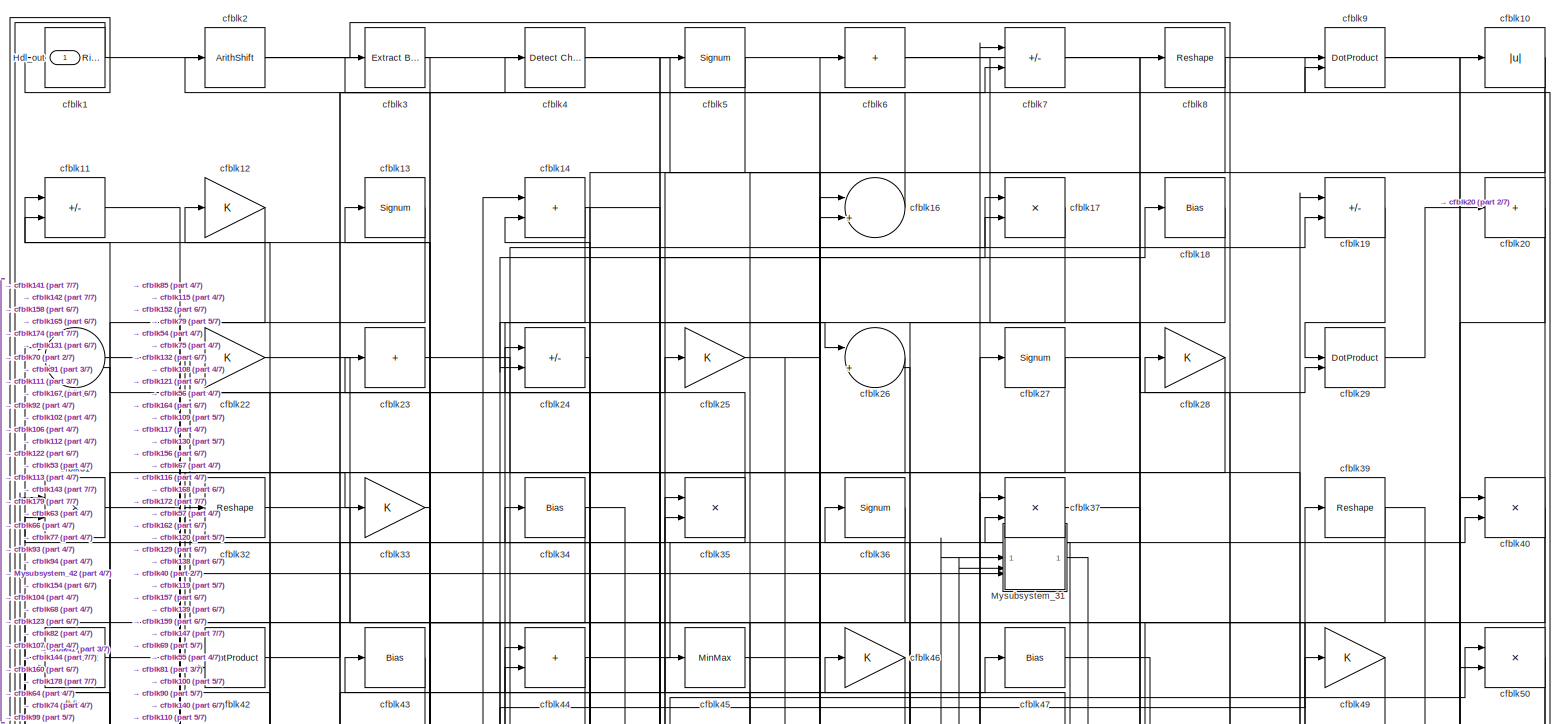
[diagram: root canvas - part 1/7, full width, top band]
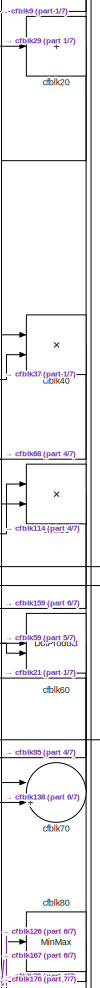
[diagram: root canvas - part 2/7, top right region]
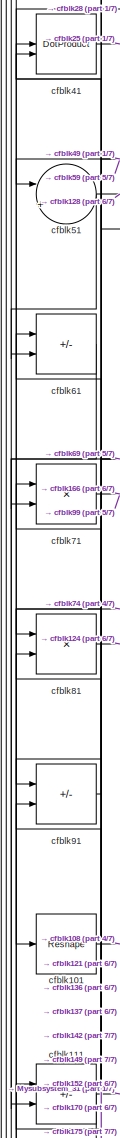
[diagram: root canvas - part 3/7, middle left region]
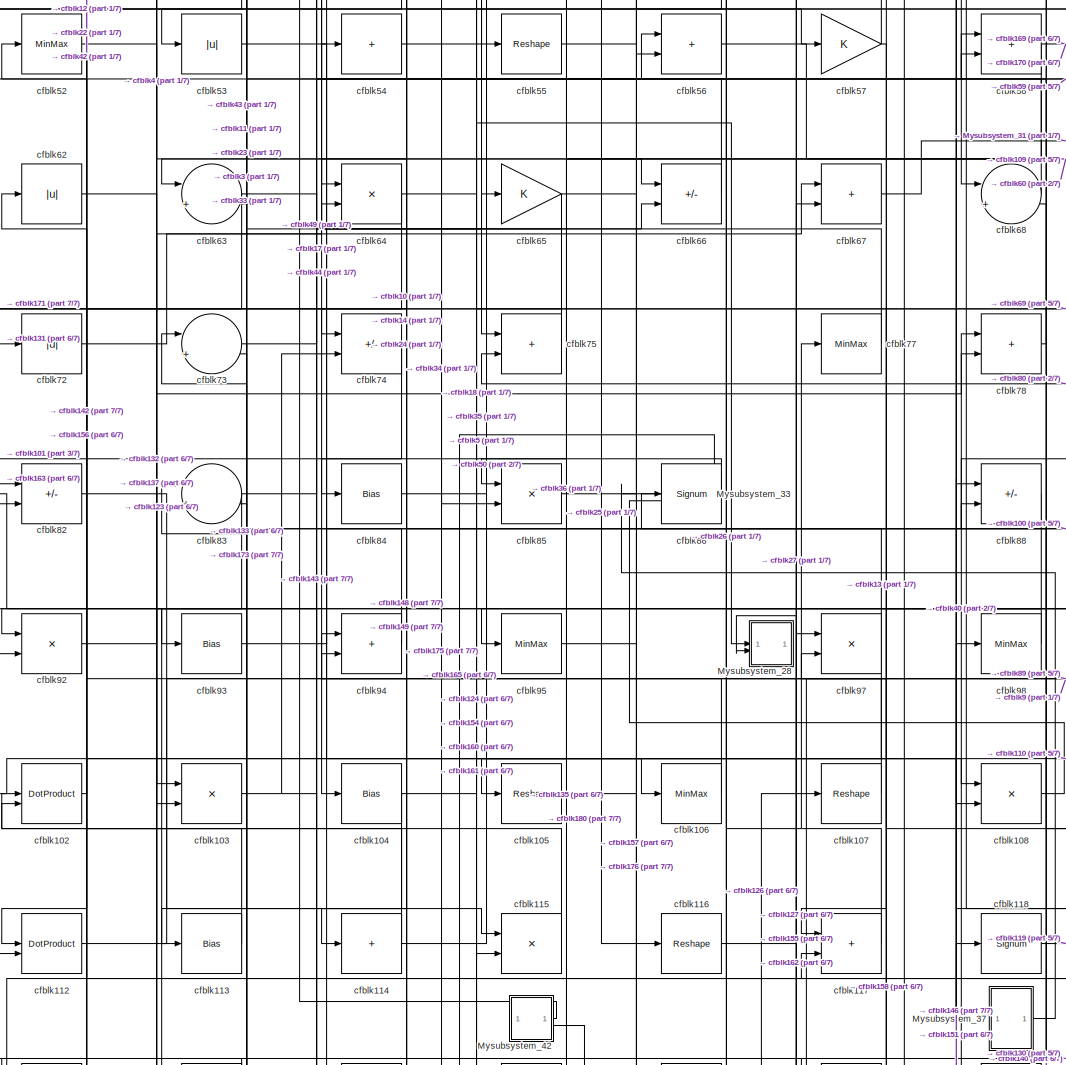
[diagram: root canvas - part 4/7, central region]
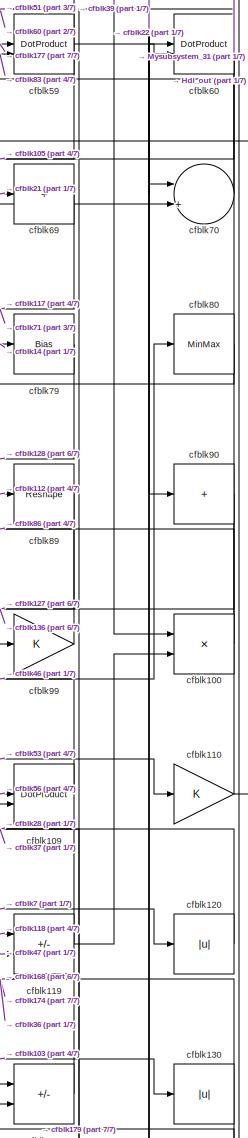
[diagram: root canvas - part 5/7, middle right region]
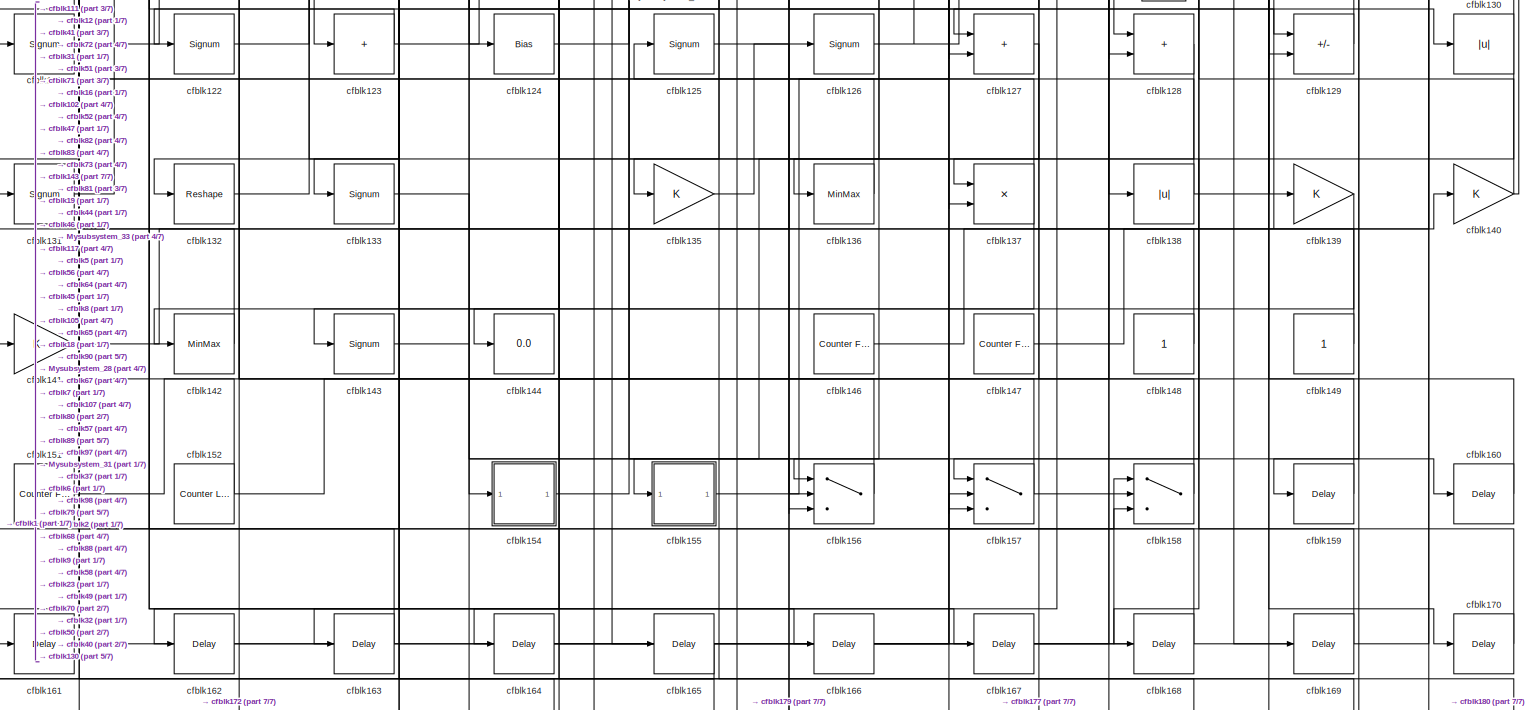
[diagram: root canvas - part 6/7, full width, bottom band]
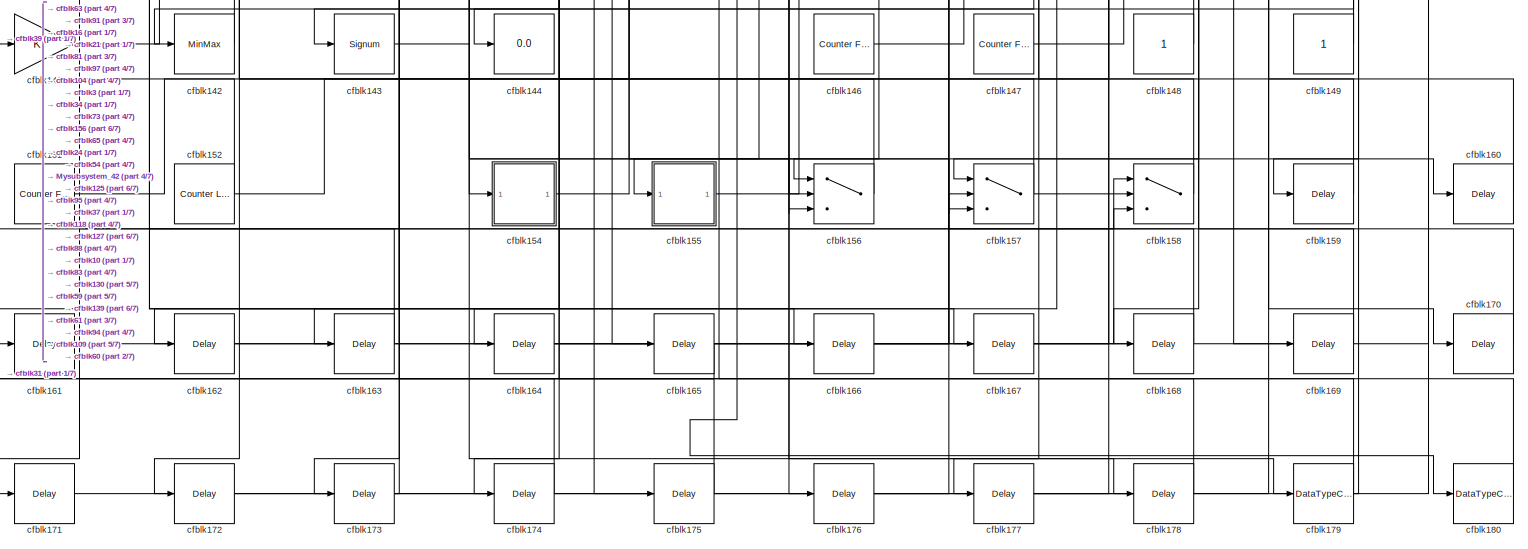
[diagram: root canvas - part 7/7, full width, bottom band]
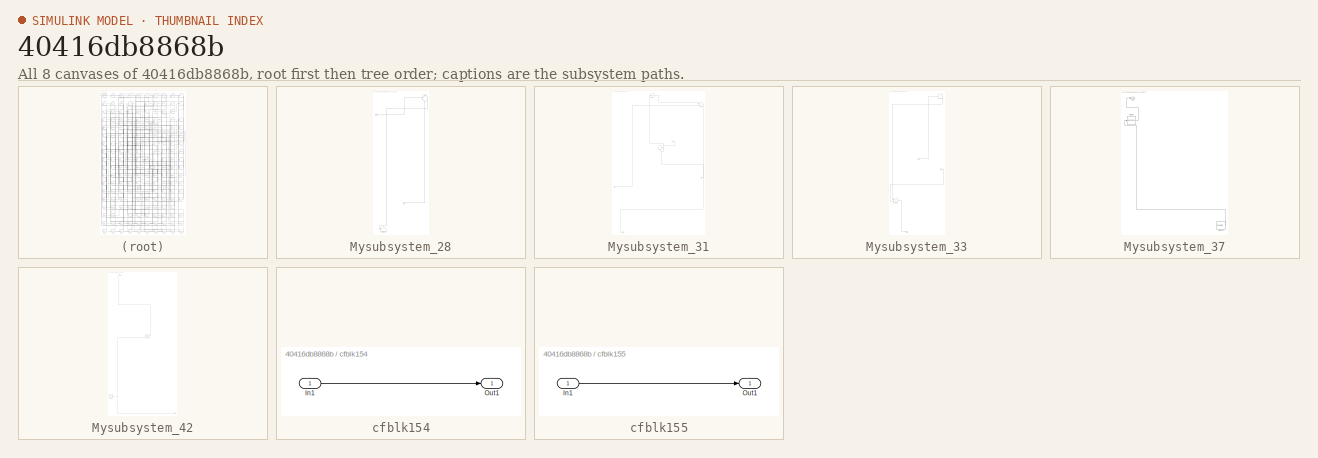
[diagram: thumbnail index - all 8 canvases of the model, root first then tree order]
MODEL slx_40416db8868b
KIND model
CONFIG AbsTol = auto
CONFIG EnableMultiTasking = off
CONFIG FixedStep = auto
CONFIG MaxStep = auto
CONFIG MinStep = auto
CONFIG RelTol = 1e-3
CONFIG SampleTimeConstraint = Unconstrained
CONFIG SolverName = VariableStepAuto
CONFIG StartTime = 0.0
CONFIG StopTime = 10.0
BLOCK [Outport] Hdl_out
  OutDataTypeStr = uint8
BLOCK [SubSystem] Mysubsystem_28
  RTWFcnName = Mysubsystem_28
  RTWFcnNameOpts = User specified
  RTWFileNameOpts = Use function name
  RTWSystemCode = Reusable function
  TreatAsAtomicUnit = on
BLOCK [Inport] Mysubsystem_28/In1
BLOCK [Inport] Mysubsystem_28/In2
  Port = 2
BLOCK [Terminator] Mysubsystem_28/cfblk145
BLOCK [Sum] Mysubsystem_28/cfblk48
  Inputs = |++
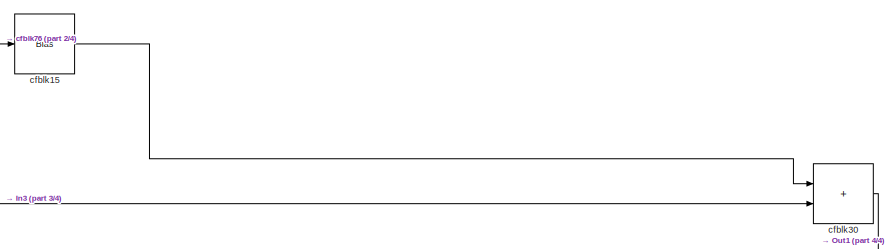
[diagram: Mysubsystem_31 - part 1/4, top right region]
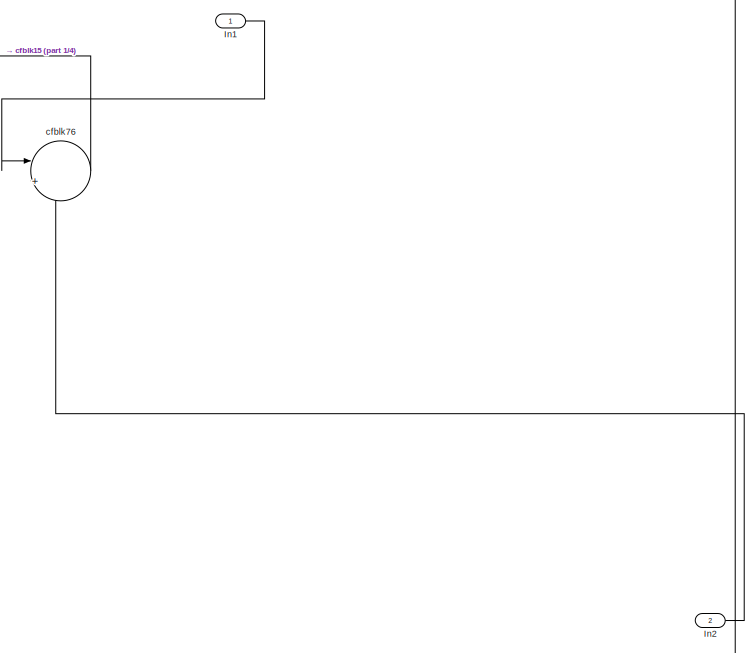
[diagram: Mysubsystem_31 - part 2/4, middle right region]
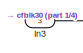
[diagram: Mysubsystem_31 - part 3/4, middle left region]
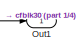
[diagram: Mysubsystem_31 - part 4/4, bottom left region]
BLOCK [SubSystem] Mysubsystem_31
  RTWFcnName = Mysubsystem_31
  RTWFcnNameOpts = User specified
  RTWFileNameOpts = Use function name
  RTWSystemCode = Reusable function
  TreatAsAtomicUnit = on
BLOCK [Inport] Mysubsystem_31/In1
BLOCK [Inport] Mysubsystem_31/In2
  Port = 2
BLOCK [Inport] Mysubsystem_31/In3
  Port = 3
BLOCK [Outport] Mysubsystem_31/Out1
BLOCK [Bias] Mysubsystem_31/cfblk15
  Bias = 0.0
  SaturateOnIntegerOverflow = off
BLOCK [Sum] Mysubsystem_31/cfblk30
  IconShape = rectangular
BLOCK [Sum] Mysubsystem_31/cfblk76
  Inputs = |++
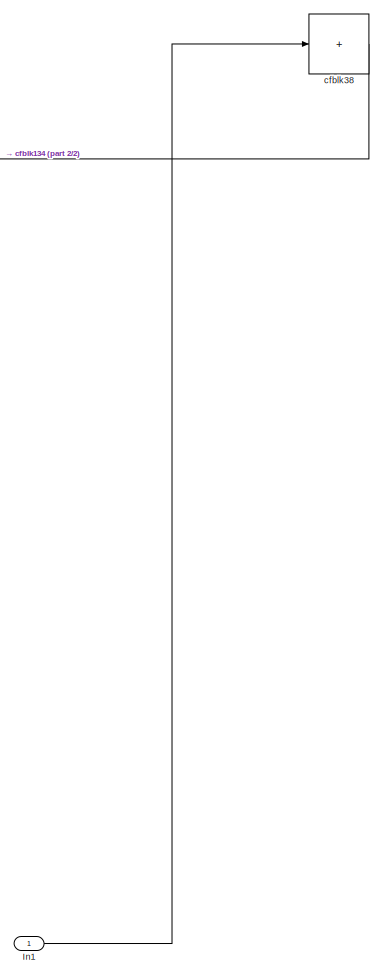
[diagram: Mysubsystem_33 - part 1/2, top right region]
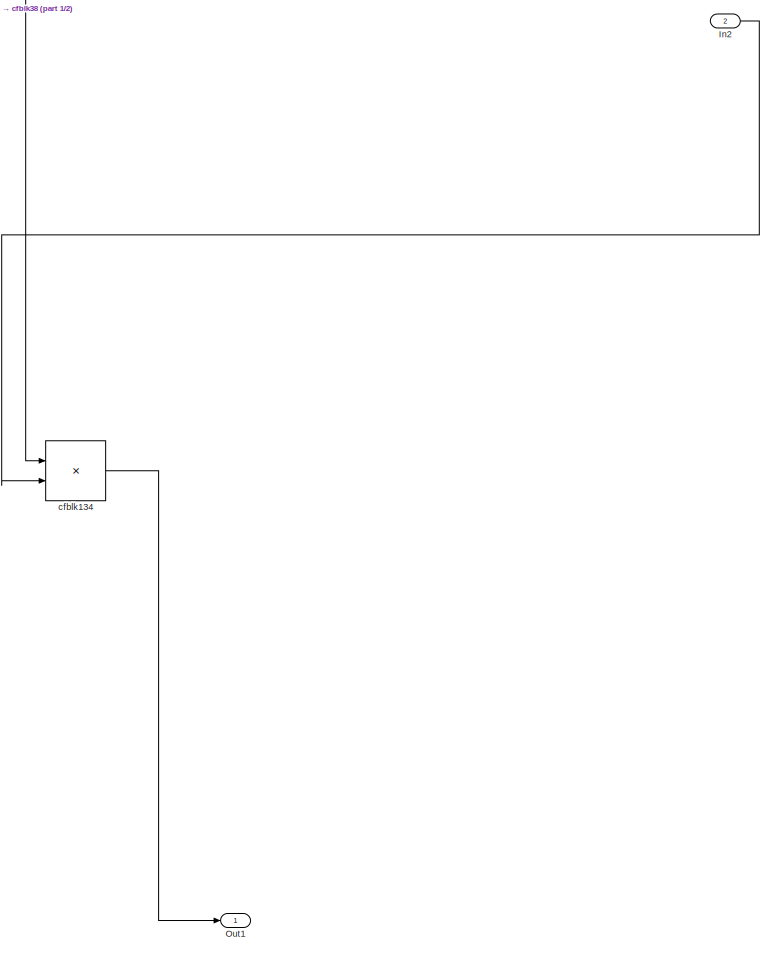
[diagram: Mysubsystem_33 - part 2/2, full width, bottom band]
BLOCK [SubSystem] Mysubsystem_33
  RTWFcnName = Mysubsystem_33
  RTWFcnNameOpts = User specified
  RTWFileNameOpts = Use function name
  RTWSystemCode = Reusable function
  TreatAsAtomicUnit = on
BLOCK [Inport] Mysubsystem_33/In1
BLOCK [Inport] Mysubsystem_33/In2
  Port = 2
BLOCK [Outport] Mysubsystem_33/Out1
BLOCK [Product] Mysubsystem_33/cfblk134
  Inputs = */
  RndMeth = Zero
  SaturateOnIntegerOverflow = on
BLOCK [Sum] Mysubsystem_33/cfblk38
  IconShape = rectangular
  Inputs = +
BLOCK [SubSystem] Mysubsystem_37
  RTWFcnName = Mysubsystem_37
  RTWFcnNameOpts = User specified
  RTWFileNameOpts = Use function name
  RTWSystemCode = Reusable function
  TreatAsAtomicUnit = on
BLOCK [Outport] Mysubsystem_37/Out1
BLOCK [Reference] Mysubsystem_37/cfblk150  REF=hdlsllib/Sources/Counter
Limited
  SourceBlock = hdlsllib/Sources/Counter\nLimited
  SourceType = Counter Limited
BLOCK [Reshape] Mysubsystem_37/cfblk96
BLOCK [SubSystem] Mysubsystem_42
  RTWFcnName = Mysubsystem_42
  RTWFcnNameOpts = User specified
  RTWFileNameOpts = Use function name
  RTWSystemCode = Reusable function
  TreatAsAtomicUnit = on
BLOCK [Outport] Mysubsystem_42/Out1
BLOCK [Reference] Mysubsystem_42/cfblk153  REF=hdlsllib/Sources/Counter
Limited
  SourceBlock = hdlsllib/Sources/Counter\nLimited
  SourceType = Counter Limited
BLOCK [MinMax] Mysubsystem_42/cfblk87
BLOCK [Outport] Mysubsystem_42/y
  Port = 2
BLOCK [Reference] cfblk1  REF=hdlsllib/Logic and Bit
Operations/Detect Rise
Nonnegative
  SourceBlock = hdlsllib/Logic and Bit\nOperations/Detect Rise\nNonnegative
  SourceType = Detect Rise Nonnegative
BLOCK [Abs] cfblk10
  OutDataTypeStr = uint8
  SaturateOnIntegerOverflow = off
BLOCK [Product] cfblk100
  Inputs = */
  OutDataTypeStr = uint8
  RndMeth = Zero
  SaturateOnIntegerOverflow = on
BLOCK [Reshape] cfblk101
BLOCK [DotProduct] cfblk102
  OutDataTypeStr = uint8
BLOCK [Product] cfblk103
  Inputs = */
  OutDataTypeStr = uint8
  RndMeth = Zero
  SaturateOnIntegerOverflow = on
BLOCK [Bias] cfblk104
  Bias = 0.0
  SaturateOnIntegerOverflow = off
BLOCK [Reshape] cfblk105
BLOCK [MinMax] cfblk106
  OutDataTypeStr = uint8
BLOCK [Reshape] cfblk107
BLOCK [Product] cfblk108
  Inputs = */
  OutDataTypeStr = uint8
  RndMeth = Zero
  SaturateOnIntegerOverflow = on
BLOCK [DotProduct] cfblk109
  OutDataTypeStr = uint8
BLOCK [Sum] cfblk11
  IconShape = rectangular
  Inputs = +-
  OutDataTypeStr = uint8
BLOCK [Gain] cfblk110
  OutDataTypeStr = uint8
BLOCK [Sum] cfblk111
  IconShape = rectangular
  Inputs = +-
  OutDataTypeStr = uint8
BLOCK [DotProduct] cfblk112
  OutDataTypeStr = uint8
BLOCK [Bias] cfblk113
  Bias = 0.0
  SaturateOnIntegerOverflow = off
BLOCK [Sum] cfblk114
  IconShape = rectangular
  Inputs = +
  OutDataTypeStr = uint8
BLOCK [Product] cfblk115
  Inputs = */
  OutDataTypeStr = uint8
  RndMeth = Zero
  SaturateOnIntegerOverflow = on
BLOCK [Reshape] cfblk116
BLOCK [Sum] cfblk117
  IconShape = rectangular
  OutDataTypeStr = uint8
BLOCK [Signum] cfblk118
BLOCK [Sum] cfblk119
  IconShape = rectangular
  Inputs = +-
  OutDataTypeStr = uint8
BLOCK [Gain] cfblk12
  OutDataTypeStr = uint8
BLOCK [Abs] cfblk120
  OutDataTypeStr = uint8
  SaturateOnIntegerOverflow = off
BLOCK [Signum] cfblk121
BLOCK [Signum] cfblk122
BLOCK [Sum] cfblk123
  IconShape = rectangular
  Inputs = +
  OutDataTypeStr = uint8
BLOCK [Bias] cfblk124
  Bias = 0.0
  SaturateOnIntegerOverflow = off
BLOCK [Signum] cfblk125
BLOCK [Signum] cfblk126
BLOCK [Sum] cfblk127
  IconShape = rectangular
  OutDataTypeStr = uint8
BLOCK [Sum] cfblk128
  IconShape = rectangular
  OutDataTypeStr = uint8
BLOCK [Sum] cfblk129
  IconShape = rectangular
  Inputs = +-
  OutDataTypeStr = uint8
BLOCK [Signum] cfblk13
BLOCK [Abs] cfblk130
  OutDataTypeStr = uint8
  SaturateOnIntegerOverflow = off
BLOCK [Signum] cfblk131
BLOCK [Reshape] cfblk132
BLOCK [Signum] cfblk133
BLOCK [Gain] cfblk135
  OutDataTypeStr = uint8
BLOCK [MinMax] cfblk136
  OutDataTypeStr = uint8
BLOCK [Product] cfblk137
  Inputs = */
  OutDataTypeStr = uint8
  RndMeth = Zero
  SaturateOnIntegerOverflow = on
BLOCK [Abs] cfblk138
  OutDataTypeStr = uint8
  SaturateOnIntegerOverflow = off
BLOCK [Gain] cfblk139
  OutDataTypeStr = uint8
BLOCK [Sum] cfblk14
  IconShape = rectangular
  OutDataTypeStr = uint8
BLOCK [Gain] cfblk140
  OutDataTypeStr = uint8
BLOCK [Gain] cfblk141
  OutDataTypeStr = uint8
BLOCK [MinMax] cfblk142
  OutDataTypeStr = uint8
BLOCK [Signum] cfblk143
BLOCK [Display] cfblk144
  Decimation = 1
BLOCK [Reference] cfblk146  REF=hdlsllib/Sources/Counter
Free-Running
  SourceBlock = hdlsllib/Sources/Counter\nFree-Running
  SourceType = Counter Free-Running
BLOCK [Reference] cfblk147  REF=hdlsllib/Sources/Counter
Free-Running
  SourceBlock = hdlsllib/Sources/Counter\nFree-Running
  SourceType = Counter Free-Running
BLOCK [Constant] cfblk148
  OutDataTypeStr = uint8
  SampleTime = -1
BLOCK [Constant] cfblk149
  OutDataTypeStr = uint8
  SampleTime = -1
BLOCK [Reference] cfblk151  REF=hdlsllib/Sources/Counter
Free-Running
  SourceBlock = hdlsllib/Sources/Counter\nFree-Running
  SourceType = Counter Free-Running
BLOCK [Reference] cfblk152  REF=hdlsllib/Sources/Counter
Limited
  SourceBlock = hdlsllib/Sources/Counter\nLimited
  SourceType = Counter Limited
BLOCK [SubSystem] cfblk154
  LibrarySourceBlock = hdlsllib/Ports &\nSubsystems/Subsystem
BLOCK [Inport] cfblk154/In1
BLOCK [Outport] cfblk154/Out1
BLOCK [SubSystem] cfblk155
  LibrarySourceBlock = hdlsllib/Ports &\nSubsystems/Subsystem
BLOCK [Inport] cfblk155/In1
BLOCK [Outport] cfblk155/Out1
BLOCK [Switch] cfblk156
  InputSameDT = off
  OutDataTypeStr = uint8
  SaturateOnIntegerOverflow = off
BLOCK [Switch] cfblk157
  InputSameDT = off
  OutDataTypeStr = uint8
  SaturateOnIntegerOverflow = off
BLOCK [Switch] cfblk158
  InputSameDT = off
  OutDataTypeStr = uint8
  SaturateOnIntegerOverflow = off
BLOCK [Delay] cfblk159
  InputPortMap = u0
  SampleTime = 1
BLOCK [Sum] cfblk16
  Inputs = |++
  OutDataTypeStr = uint8
BLOCK [Delay] cfblk160
  InputPortMap = u0
  SampleTime = 1
BLOCK [Delay] cfblk161
  InputPortMap = u0
  SampleTime = 1
BLOCK [Delay] cfblk162
  InputPortMap = u0
  SampleTime = 1
BLOCK [Delay] cfblk163
  InputPortMap = u0
  SampleTime = 1
BLOCK [Delay] cfblk164
  InputPortMap = u0
  SampleTime = 1
BLOCK [Delay] cfblk165
  InputPortMap = u0
  SampleTime = 1
BLOCK [Delay] cfblk166
  InputPortMap = u0
  SampleTime = 1
BLOCK [Delay] cfblk167
  InputPortMap = u0
  SampleTime = 1
BLOCK [Delay] cfblk168
  InputPortMap = u0
  SampleTime = 1
BLOCK [Delay] cfblk169
  InputPortMap = u0
  SampleTime = 1
BLOCK [Product] cfblk17
  Inputs = */
  OutDataTypeStr = uint8
  RndMeth = Zero
  SaturateOnIntegerOverflow = on
BLOCK [Delay] cfblk170
  InputPortMap = u0
  SampleTime = 1
BLOCK [Delay] cfblk171
  InputPortMap = u0
  SampleTime = 1
BLOCK [Delay] cfblk172
  InputPortMap = u0
  SampleTime = 1
BLOCK [Delay] cfblk173
  InputPortMap = u0
  SampleTime = 1
BLOCK [Delay] cfblk174
  InputPortMap = u0
  SampleTime = 1
BLOCK [Delay] cfblk175
  InputPortMap = u0
  SampleTime = 1
BLOCK [Delay] cfblk176
  InputPortMap = u0
  SampleTime = 1
BLOCK [Delay] cfblk177
  InputPortMap = u0
  SampleTime = 1
BLOCK [Delay] cfblk178
  InputPortMap = u0
  SampleTime = 1
BLOCK [DataTypeConversion] cfblk179
  OutDataTypeStr = uint8
  RndMeth = Floor
  SaturateOnIntegerOverflow = off
BLOCK [Bias] cfblk18
  Bias = 0.0
  SaturateOnIntegerOverflow = off
BLOCK [DataTypeConversion] cfblk180
  OutDataTypeStr = uint8
  RndMeth = Floor
  SaturateOnIntegerOverflow = off
BLOCK [Sum] cfblk19
  IconShape = rectangular
  Inputs = +-
  OutDataTypeStr = uint8
BLOCK [ArithShift] cfblk2
  BitShiftNumber = 8
  InputPortMap = u0
BLOCK [Sum] cfblk20
  IconShape = rectangular
  Inputs = +
  OutDataTypeStr = uint8
BLOCK [Sum] cfblk21
  Inputs = |++
  OutDataTypeStr = uint8
BLOCK [Gain] cfblk22
  OutDataTypeStr = uint8
BLOCK [Sum] cfblk23
  IconShape = rectangular
  Inputs = +
  OutDataTypeStr = uint8
BLOCK [Sum] cfblk24
  IconShape = rectangular
  Inputs = +-
  OutDataTypeStr = uint8
BLOCK [Gain] cfblk25
  OutDataTypeStr = uint8
BLOCK [Sum] cfblk26
  Inputs = |++
  OutDataTypeStr = uint8
BLOCK [Signum] cfblk27
BLOCK [Gain] cfblk28
  OutDataTypeStr = uint8
BLOCK [DotProduct] cfblk29
  OutDataTypeStr = uint8
BLOCK [Reference] cfblk3  REF=simulink/Logic and Bit
Operations/Extract Bits
  LibrarySourceBlock = hdlsllib/Logic and Bit\nOperations/Extract Bits
  SourceBlock = simulink/Logic and Bit\nOperations/Extract Bits
  SourceType = Extract Bits
BLOCK [Product] cfblk31
  Inputs = */
  OutDataTypeStr = uint8
  RndMeth = Zero
  SaturateOnIntegerOverflow = on
BLOCK [Reshape] cfblk32
BLOCK [Gain] cfblk33
  OutDataTypeStr = uint8
BLOCK [Bias] cfblk34
  Bias = 0.0
  SaturateOnIntegerOverflow = off
BLOCK [Product] cfblk35
  Inputs = */
  OutDataTypeStr = uint8
  RndMeth = Zero
  SaturateOnIntegerOverflow = on
BLOCK [Signum] cfblk36
BLOCK [Product] cfblk37
  Inputs = */
  OutDataTypeStr = uint8
  RndMeth = Zero
  SaturateOnIntegerOverflow = on
BLOCK [Reshape] cfblk39
BLOCK [Reference] cfblk4  REF=simulink/Logic and Bit
Operations/Detect
Change
  LibrarySourceBlock = hdlsllib/Logic and Bit\nOperations/Detect\nChange
  SourceBlock = simulink/Logic and Bit\nOperations/Detect\nChange
  SourceType = Detect Change
BLOCK [Product] cfblk40
  Inputs = */
  OutDataTypeStr = uint8
  RndMeth = Zero
  SaturateOnIntegerOverflow = on
BLOCK [DotProduct] cfblk41
  OutDataTypeStr = uint8
BLOCK [DotProduct] cfblk42
  OutDataTypeStr = uint8
BLOCK [Bias] cfblk43
  Bias = 0.0
  SaturateOnIntegerOverflow = off
BLOCK [Sum] cfblk44
  IconShape = rectangular
  OutDataTypeStr = uint8
BLOCK [MinMax] cfblk45
  OutDataTypeStr = uint8
BLOCK [Gain] cfblk46
  OutDataTypeStr = uint8
BLOCK [Bias] cfblk47
  Bias = 0.0
  SaturateOnIntegerOverflow = off
BLOCK [Gain] cfblk49
  OutDataTypeStr = uint8
BLOCK [Signum] cfblk5
BLOCK [Product] cfblk50
  Inputs = */
  OutDataTypeStr = uint8
  RndMeth = Zero
  SaturateOnIntegerOverflow = on
BLOCK [Sum] cfblk51
  Inputs = |++
  OutDataTypeStr = uint8
BLOCK [MinMax] cfblk52
  OutDataTypeStr = uint8
BLOCK [Abs] cfblk53
  OutDataTypeStr = uint8
  SaturateOnIntegerOverflow = off
BLOCK [Sum] cfblk54
  IconShape = rectangular
  Inputs = +
  OutDataTypeStr = uint8
BLOCK [Reshape] cfblk55
BLOCK [Sum] cfblk56
  IconShape = rectangular
  OutDataTypeStr = uint8
BLOCK [Gain] cfblk57
  OutDataTypeStr = uint8
BLOCK [Sum] cfblk58
  IconShape = rectangular
  OutDataTypeStr = uint8
BLOCK [DotProduct] cfblk59
  OutDataTypeStr = uint8
BLOCK [Sum] cfblk6
  IconShape = rectangular
  Inputs = +
  OutDataTypeStr = uint8
BLOCK [DotProduct] cfblk60
  OutDataTypeStr = uint8
BLOCK [Sum] cfblk61
  IconShape = rectangular
  Inputs = +-
  OutDataTypeStr = uint8
BLOCK [Abs] cfblk62
  OutDataTypeStr = uint8
  SaturateOnIntegerOverflow = off
BLOCK [Sum] cfblk63
  Inputs = |++
  OutDataTypeStr = uint8
BLOCK [Product] cfblk64
  Inputs = */
  OutDataTypeStr = uint8
  RndMeth = Zero
  SaturateOnIntegerOverflow = on
BLOCK [Gain] cfblk65
  OutDataTypeStr = uint8
BLOCK [Sum] cfblk66
  IconShape = rectangular
  Inputs = +-
  OutDataTypeStr = uint8
BLOCK [Sum] cfblk67
  IconShape = rectangular
  OutDataTypeStr = uint8
BLOCK [Sum] cfblk68
  Inputs = |++
  OutDataTypeStr = uint8
BLOCK [Sum] cfblk69
  IconShape = rectangular
  Inputs = +
  OutDataTypeStr = uint8
BLOCK [Sum] cfblk7
  IconShape = rectangular
  Inputs = +-
  OutDataTypeStr = uint8
BLOCK [Sum] cfblk70
  Inputs = |++
  OutDataTypeStr = uint8
BLOCK [Product] cfblk71
  Inputs = */
  OutDataTypeStr = uint8
  RndMeth = Zero
  SaturateOnIntegerOverflow = on
BLOCK [Abs] cfblk72
  OutDataTypeStr = uint8
  SaturateOnIntegerOverflow = off
BLOCK [Sum] cfblk73
  Inputs = |++
  OutDataTypeStr = uint8
BLOCK [Sum] cfblk74
  IconShape = rectangular
  Inputs = +-
  OutDataTypeStr = uint8
BLOCK [Sum] cfblk75
  IconShape = rectangular
  OutDataTypeStr = uint8
BLOCK [MinMax] cfblk77
  OutDataTypeStr = uint8
BLOCK [Sum] cfblk78
  IconShape = rectangular
  OutDataTypeStr = uint8
BLOCK [Bias] cfblk79
  Bias = 0.0
  SaturateOnIntegerOverflow = off
BLOCK [Reshape] cfblk8
BLOCK [MinMax] cfblk80
  OutDataTypeStr = uint8
BLOCK [Product] cfblk81
  Inputs = */
  OutDataTypeStr = uint8
  RndMeth = Zero
  SaturateOnIntegerOverflow = on
BLOCK [Sum] cfblk82
  IconShape = rectangular
  Inputs = +-
  OutDataTypeStr = uint8
BLOCK [Sum] cfblk83
  Inputs = |++
  OutDataTypeStr = uint8
BLOCK [Bias] cfblk84
  Bias = 0.0
  SaturateOnIntegerOverflow = off
BLOCK [Product] cfblk85
  Inputs = */
  OutDataTypeStr = uint8
  RndMeth = Zero
  SaturateOnIntegerOverflow = on
BLOCK [Signum] cfblk86
BLOCK [Sum] cfblk88
  IconShape = rectangular
  Inputs = +-
  OutDataTypeStr = uint8
BLOCK [Reshape] cfblk89
BLOCK [DotProduct] cfblk9
  OutDataTypeStr = uint8
BLOCK [Sum] cfblk90
  IconShape = rectangular
  Inputs = +
  OutDataTypeStr = uint8
BLOCK [Sum] cfblk91
  IconShape = rectangular
  Inputs = +-
  OutDataTypeStr = uint8
BLOCK [Product] cfblk92
  Inputs = */
  OutDataTypeStr = uint8
  RndMeth = Zero
  SaturateOnIntegerOverflow = on
BLOCK [Bias] cfblk93
  Bias = 0.0
  SaturateOnIntegerOverflow = off
BLOCK [Sum] cfblk94
  IconShape = rectangular
  OutDataTypeStr = uint8
BLOCK [MinMax] cfblk95
  OutDataTypeStr = uint8
BLOCK [Product] cfblk97
  Inputs = */
  OutDataTypeStr = uint8
  RndMeth = Zero
  SaturateOnIntegerOverflow = on
BLOCK [MinMax] cfblk98
  OutDataTypeStr = uint8
BLOCK [Gain] cfblk99
  OutDataTypeStr = uint8
LINE Mysubsystem_28/In1:1 -> Mysubsystem_28/cfblk48:1
LINE Mysubsystem_28/In2:1 -> Mysubsystem_28/cfblk48:2
LINE Mysubsystem_28/cfblk48:1 -> Mysubsystem_28/cfblk145:1
LINE Mysubsystem_31/In1:1 -> Mysubsystem_31/cfblk76:1
LINE Mysubsystem_31/In2:1 -> Mysubsystem_31/cfblk76:2
LINE Mysubsystem_31/In3:1 -> Mysubsystem_31/cfblk30:2
LINE Mysubsystem_31/cfblk15:1 -> Mysubsystem_31/cfblk30:1
LINE Mysubsystem_31/cfblk30:1 -> Mysubsystem_31/Out1:1
LINE Mysubsystem_31/cfblk76:1 -> Mysubsystem_31/cfblk15:1
LINE Mysubsystem_31:1 -> cfblk162:1
LINE Mysubsystem_33/In1:1 -> Mysubsystem_33/cfblk38:1
LINE Mysubsystem_33/In2:1 -> Mysubsystem_33/cfblk134:2
LINE Mysubsystem_33/cfblk134:1 -> Mysubsystem_33/Out1:1
LINE Mysubsystem_33/cfblk38:1 -> Mysubsystem_33/cfblk134:1
LINE Mysubsystem_33:1 -> cfblk165:1
LINE Mysubsystem_37/cfblk150:1 -> Mysubsystem_37/cfblk96:1
LINE Mysubsystem_37/cfblk96:1 -> Mysubsystem_37/Out1:1
LINE Mysubsystem_37:1 -> Mysubsystem_33:1
NET Mysubsystem_42/cfblk153:1 -> Mysubsystem_42/cfblk87:1, Mysubsystem_42/y:1
LINE Mysubsystem_42/cfblk87:1 -> Mysubsystem_42/Out1:1
LINE Mysubsystem_42:1 -> cfblk14:1
LINE Mysubsystem_42:2 -> cfblk180:1
LINE cfblk100:1 -> cfblk86:1
LINE cfblk101:1 -> cfblk108:1
LINE cfblk102:1 -> cfblk22:1
NET cfblk103:1 -> cfblk130:1, cfblk74:2
NET cfblk104:1 -> cfblk173:1, cfblk18:1
LINE cfblk105:1 -> cfblk127:2
LINE cfblk106:1 -> cfblk42:2
LINE cfblk107:1 -> cfblk24:1
LINE cfblk108:1 -> Mysubsystem_33:2
LINE cfblk109:1 -> cfblk46:1
LINE cfblk10:1 -> cfblk64:1
NET cfblk110:1 -> Hdl_out:1, Mysubsystem_31:2
NET cfblk111:1 -> Mysubsystem_31:3, cfblk121:1
NET cfblk112:1 -> cfblk78:2, cfblk89:1, cfblk9:2
LINE cfblk113:1 -> cfblk62:1
NET cfblk114:1 -> cfblk102:1, cfblk50:1
LINE cfblk115:1 -> cfblk12:1
LINE cfblk116:1 -> cfblk27:1
NET cfblk117:1 -> cfblk26:2, cfblk77:1
LINE cfblk118:1 -> cfblk119:1
NET cfblk119:1 -> cfblk100:2, cfblk28:1
LINE cfblk11:1 -> cfblk92:2
LINE cfblk120:1 -> cfblk37:2
LINE cfblk121:1 -> cfblk16:2
LINE cfblk122:1 -> cfblk47:1
NET cfblk123:1 -> cfblk122:1, cfblk19:2
LINE cfblk124:1 -> cfblk117:2
LINE cfblk125:1 -> cfblk179:1
NET cfblk126:1 -> Mysubsystem_28:2, cfblk107:1, cfblk80:1
LINE cfblk127:1 -> cfblk177:1
LINE cfblk128:1 -> cfblk155:1
LINE cfblk129:1 -> cfblk32:1
LINE cfblk12:1 -> cfblk131:1
NET cfblk130:1 -> cfblk168:1, cfblk174:1, cfblk36:1
LINE cfblk131:1 -> cfblk72:1
LINE cfblk132:1 -> cfblk64:2
NET cfblk133:1 -> cfblk156:2, cfblk83:2
LINE cfblk135:1 -> cfblk126:1
LINE cfblk136:1 -> cfblk71:1
NET cfblk137:1 -> cfblk163:1, cfblk51:2
NET cfblk138:1 -> cfblk45:1, cfblk70:2
LINE cfblk139:1 -> cfblk172:1
LINE cfblk13:1 -> cfblk112:2
NET cfblk140:1 -> cfblk88:2, cfblk9:1
LINE cfblk141:1 -> cfblk16:1
NET cfblk142:1 -> cfblk21:1, cfblk81:2
NET cfblk143:1 -> cfblk156:3, cfblk178:1, cfblk65:1
LINE cfblk146:1 -> cfblk118:1
NET cfblk147:1 -> cfblk10:1, cfblk39:1
NET cfblk148:1 -> cfblk83:1, cfblk94:1
NET cfblk149:1 -> cfblk61:1, cfblk94:2
NET cfblk14:1 -> cfblk24:2, cfblk74:1, cfblk79:1
LINE cfblk151:1 -> cfblk98:1
NET cfblk152:1 -> cfblk111:1, cfblk5:1
LINE cfblk154/In1:1 -> cfblk154/Out1:1
NET cfblk154:1 -> Mysubsystem_28:1, cfblk56:1
LINE cfblk155/In1:1 -> cfblk155/Out1:1
LINE cfblk155:1 -> cfblk67:2
LINE cfblk156:1 -> cfblk52:1
NET cfblk157:1 -> cfblk102:2, cfblk140:1
LINE cfblk158:1 -> cfblk97:2
LINE cfblk159:1 -> cfblk19:1
LINE cfblk160:1 -> cfblk44:2
LINE cfblk161:1 -> cfblk158:3
LINE cfblk162:1 -> cfblk97:1
LINE cfblk163:1 -> cfblk82:1
LINE cfblk164:1 -> cfblk158:2
LINE cfblk165:1 -> cfblk1:1
LINE cfblk166:1 -> cfblk157:2
LINE cfblk167:1 -> cfblk40:1
LINE cfblk168:1 -> cfblk7:1
LINE cfblk169:1 -> cfblk68:2
LINE cfblk16:1 -> cfblk2:1
LINE cfblk170:1 -> cfblk41:2
LINE cfblk171:1 -> cfblk88:1
LINE cfblk172:1 -> cfblk37:1
LINE cfblk173:1 -> cfblk73:2
LINE cfblk174:1 -> cfblk31:1
LINE cfblk175:1 -> cfblk91:2
LINE cfblk176:1 -> cfblk60:1
LINE cfblk177:1 -> cfblk59:1
LINE cfblk178:1 -> cfblk34:1
NET cfblk179:1 -> cfblk109:2, cfblk3:1
LINE cfblk17:1 -> cfblk104:1
LINE cfblk180:1 -> cfblk125:1
LINE cfblk18:1 -> cfblk156:1
LINE cfblk19:1 -> cfblk29:1
LINE cfblk1:1 -> cfblk158:1
LINE cfblk20:1 -> cfblk50:2
LINE cfblk21:1 -> cfblk69:1
LINE cfblk22:1 -> cfblk90:1
LINE cfblk23:1 -> cfblk139:1
LINE cfblk24:1 -> cfblk144:1
NET cfblk25:1 -> cfblk116:1, cfblk6:1
LINE cfblk26:1 -> cfblk115:2
NET cfblk27:1 -> cfblk29:2, cfblk42:1
LINE cfblk28:1 -> cfblk91:1
LINE cfblk29:1 -> cfblk20:1
LINE cfblk2:1 -> cfblk157:1
NET cfblk31:1 -> cfblk167:1, cfblk33:1
LINE cfblk32:1 -> cfblk154:1
LINE cfblk33:1 -> cfblk113:1
NET cfblk34:1 -> cfblk143:1, cfblk85:2
NET cfblk35:1 -> cfblk11:1, cfblk31:2
NET cfblk36:1 -> cfblk85:1, cfblk93:1
NET cfblk37:1 -> cfblk129:1, cfblk40:2
NET cfblk39:1 -> cfblk100:1, cfblk141:1
LINE cfblk3:1 -> cfblk63:1
LINE cfblk40:1 -> cfblk68:1
LINE cfblk41:1 -> cfblk25:1
LINE cfblk42:1 -> cfblk35:1
LINE cfblk43:1 -> cfblk53:1
NET cfblk44:1 -> cfblk82:2, cfblk8:1
LINE cfblk45:1 -> cfblk7:2
LINE cfblk46:1 -> cfblk164:1
LINE cfblk47:1 -> cfblk119:2
NET cfblk49:1 -> cfblk129:2, cfblk55:1, cfblk81:1
NET cfblk4:1 -> cfblk108:2, cfblk26:1, cfblk56:2
LINE cfblk50:1 -> cfblk159:1
NET cfblk51:1 -> cfblk128:2, cfblk61:2
LINE cfblk52:1 -> cfblk66:1
NET cfblk53:1 -> cfblk110:1, cfblk49:1
NET cfblk54:1 -> cfblk175:1, cfblk35:2
LINE cfblk55:1 -> cfblk57:1
LINE cfblk56:1 -> cfblk109:1
NET cfblk57:1 -> cfblk137:1, cfblk13:1
NET cfblk58:1 -> cfblk114:1, cfblk169:1, cfblk170:1, cfblk63:2
NET cfblk59:1 -> cfblk105:1, cfblk51:1, cfblk60:2
LINE cfblk5:1 -> cfblk75:1
LINE cfblk60:1 -> cfblk95:1
LINE cfblk61:1 -> cfblk111:2
LINE cfblk62:1 -> cfblk103:1
NET cfblk63:1 -> cfblk171:1, cfblk66:2
NET cfblk64:1 -> cfblk160:1, cfblk161:1
NET cfblk65:1 -> cfblk112:1, cfblk157:3
LINE cfblk66:1 -> cfblk23:1
LINE cfblk67:1 -> Mysubsystem_31:1
LINE cfblk68:1 -> cfblk44:1
NET cfblk69:1 -> cfblk117:1, cfblk71:2
LINE cfblk6:1 -> cfblk138:1
LINE cfblk70:1 -> cfblk21:2
NET cfblk71:1 -> cfblk166:1, cfblk99:1
LINE cfblk72:1 -> cfblk67:1
NET cfblk73:1 -> cfblk133:1, cfblk58:2
LINE cfblk74:1 -> cfblk101:1
LINE cfblk75:1 -> cfblk54:1
LINE cfblk77:1 -> cfblk11:2
LINE cfblk78:1 -> cfblk58:1
LINE cfblk79:1 -> cfblk128:1
LINE cfblk7:1 -> cfblk120:1
LINE cfblk80:1 -> cfblk75:2
LINE cfblk81:1 -> cfblk124:1
NET cfblk82:1 -> cfblk115:1, cfblk137:2
NET cfblk83:1 -> cfblk103:2, cfblk123:1, cfblk59:2
LINE cfblk84:1 -> cfblk106:1
LINE cfblk85:1 -> cfblk17:1
LINE cfblk86:1 -> cfblk84:1
LINE cfblk88:1 -> cfblk135:1
LINE cfblk89:1 -> cfblk127:1
LINE cfblk8:1 -> cfblk132:1
LINE cfblk90:1 -> cfblk136:1
LINE cfblk91:1 -> cfblk41:1
LINE cfblk92:1 -> cfblk4:1
NET cfblk93:1 -> cfblk17:2, cfblk78:1
LINE cfblk94:1 -> cfblk43:1
LINE cfblk95:1 -> cfblk176:1
NET cfblk97:1 -> cfblk142:1, cfblk73:1
LINE cfblk98:1 -> cfblk92:1
LINE cfblk99:1 -> cfblk14:2
LINE cfblk9:1 -> cfblk70:1
note: NET lines group one-source signal fan-out (src -> all destinations, sorted); 1:1 wires keep LINE
